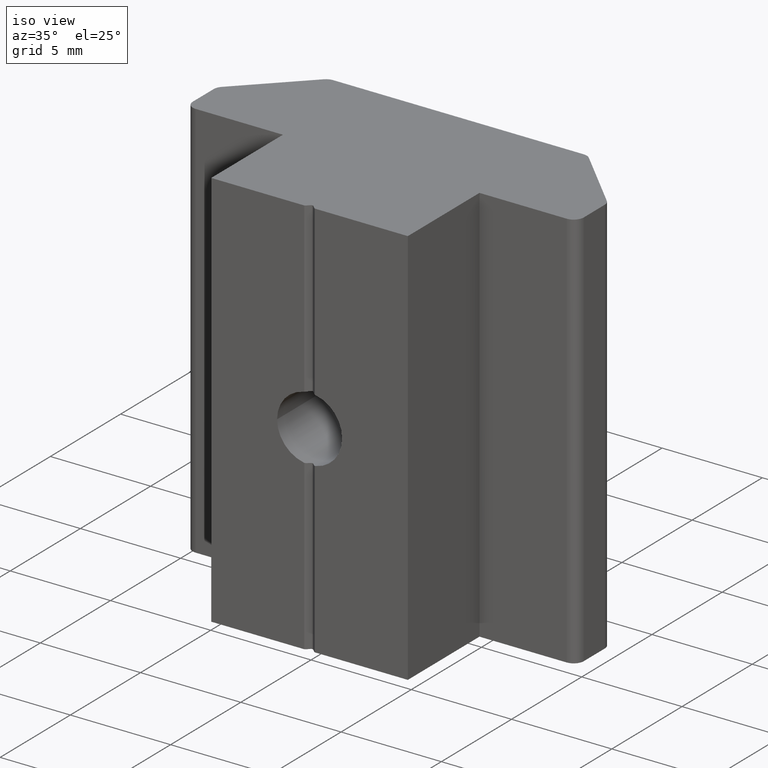
[diagram: clean part render]
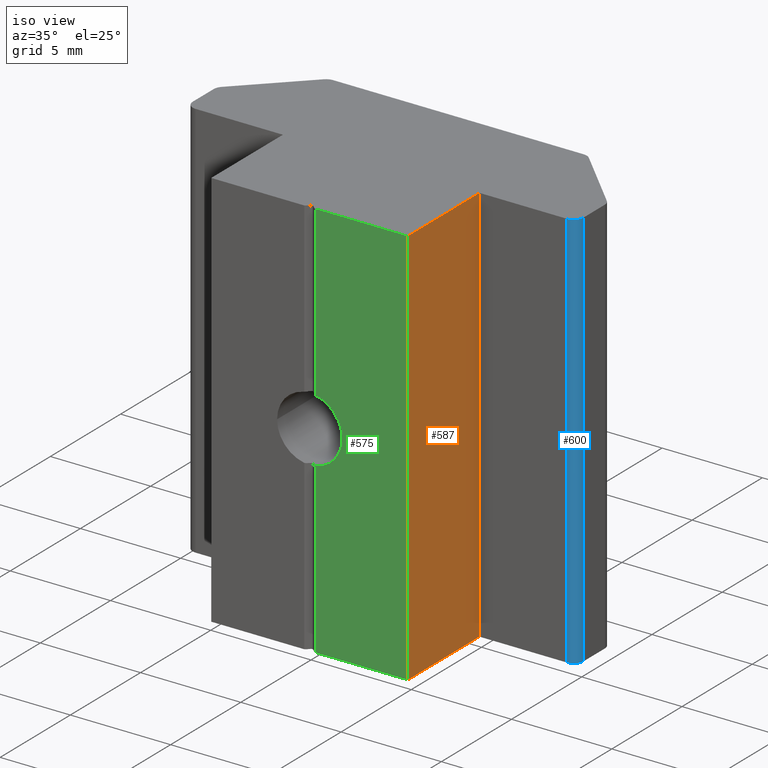
[diagram: same view with three faces highlighted in distinct colors, each labeled with its STEP entity id]
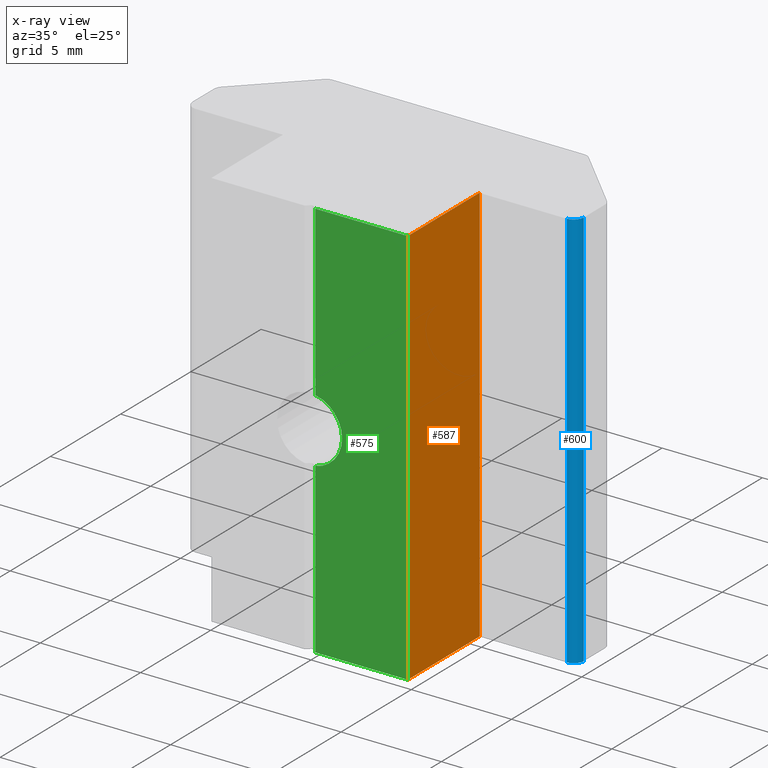
[diagram: x-ray of the same camera — body ghosted, the three highlighted faces saturated]
A machine part, iso view with three faces highlighted in distinct colors.
The next image is the same camera in x-ray (body ghosted, the three faces saturated) — at least one of them is partly hidden behind the body in this view.
Their STEP definitions:

[orange] entity #587 — the highlighted planar face has unit normal (1, 0, 0).
#23=PLANE('',#658);
#47=FACE_OUTER_BOUND('',#77,.T.);
#77=EDGE_LOOP('',(#476,#477,#478,#479));
#109=LINE('',#934,#164);
#135=LINE('',#1007,#190);
#136=LINE('',#1010,#191);
#137=LINE('',#1011,#192);
#164=VECTOR('',#713,10.);
#190=VECTOR('',#783,10.);
#191=VECTOR('',#786,10.);
#192=VECTOR('',#787,10.);
#255=VERTEX_POINT('',#931);
#256=VERTEX_POINT('',#933);
#281=VERTEX_POINT('',#1005);
#282=VERTEX_POINT('',#1009);
#317=EDGE_CURVE('',#255,#256,#109,.T.);
#354=EDGE_CURVE('',#281,#255,#135,.T.);
#355=EDGE_CURVE('',#282,#281,#136,.T.);
#356=EDGE_CURVE('',#256,#282,#137,.T.);
#476=ORIENTED_EDGE('',*,*,#355,.F.);
#477=ORIENTED_EDGE('',*,*,#356,.F.);
#478=ORIENTED_EDGE('',*,*,#317,.F.);
#479=ORIENTED_EDGE('',*,*,#354,.F.);
#587=ADVANCED_FACE('',(#47),#23,.T.);
#658=AXIS2_PLACEMENT_3D('',#1008,#784,#785);
#713=DIRECTION('',(0.,0.,1.));
#783=DIRECTION('',(0.,-1.,0.));
#784=DIRECTION('center_axis',(1.,0.,0.));
#785=DIRECTION('ref_axis',(0.,1.,0.));
#786=DIRECTION('',(0.,0.,-1.));
#787=DIRECTION('',(0.,1.,0.));
#931=CARTESIAN_POINT('',(4.9,-5.1,-10.));
#933=CARTESIAN_POINT('',(4.9,-5.1,10.));
#934=CARTESIAN_POINT('',(4.9,-5.1,0.));
#1005=CARTESIAN_POINT('',(4.9,0.,-10.));
#1007=CARTESIAN_POINT('',(4.9,-5.1,-10.));
#1008=CARTESIAN_POINT('Origin',(4.9,-5.1,0.));
#1009=CARTESIAN_POINT('',(4.9,0.,10.));
#1010=CARTESIAN_POINT('',(4.9,0.,0.));
#1011=CARTESIAN_POINT('',(4.9,-5.1,10.));

[blue] entity #600 — the highlighted cylindrical surface (edge-blend (fillet) strip) has radius 0.5 mm, axis along (0, 0, 1).
#60=FACE_OUTER_BOUND('',#91,.T.);
#91=EDGE_LOOP('',(#530,#531,#532,#533));
#156=LINE('',#1059,#211);
#157=LINE('',#1063,#212);
#211=VECTOR('',#840,10.);
#212=VECTOR('',#845,10.);
#230=CIRCLE('',#657,0.499999999999999);
#236=CIRCLE('',#677,0.499999999999999);
#279=VERTEX_POINT('',#1001);
#280=VERTEX_POINT('',#1003);
#294=VERTEX_POINT('',#1057);
#295=VERTEX_POINT('',#1061);
#352=EDGE_CURVE('',#279,#280,#230,.T.);
#380=EDGE_CURVE('',#279,#294,#156,.T.);
#381=EDGE_CURVE('',#295,#294,#236,.T.);
#382=EDGE_CURVE('',#280,#295,#157,.T.);
#530=ORIENTED_EDGE('',*,*,#380,.T.);
#531=ORIENTED_EDGE('',*,*,#381,.F.);
#532=ORIENTED_EDGE('',*,*,#382,.F.);
#533=ORIENTED_EDGE('',*,*,#352,.F.);
#572=CYLINDRICAL_SURFACE('',#676,0.499999999999999);
#600=ADVANCED_FACE('',(#60),#572,.T.);
#657=AXIS2_PLACEMENT_3D('',#1004,#780,#781);
#676=AXIS2_PLACEMENT_3D('',#1060,#841,#842);
#677=AXIS2_PLACEMENT_3D('',#1062,#843,#844);
#780=DIRECTION('center_axis',(0.,0.,-1.));
#781=DIRECTION('ref_axis',(0.,-1.,0.));
#840=DIRECTION('',(0.,0.,1.));
#841=DIRECTION('center_axis',(0.,0.,1.));
#842=DIRECTION('ref_axis',(0.,-1.,0.));
#843=DIRECTION('center_axis',(0.,0.,1.));
#844=DIRECTION('ref_axis',(0.,-1.,0.));
#845=DIRECTION('',(0.,0.,1.));
#1001=CARTESIAN_POINT('',(9.75,0.5,-10.));
#1003=CARTESIAN_POINT('',(9.25,0.,-10.));
#1004=CARTESIAN_POINT('Origin',(9.25,0.5,-10.));
#1057=CARTESIAN_POINT('',(9.75,0.5,10.));
#1059=CARTESIAN_POINT('',(9.75,0.5,0.));
#1060=CARTESIAN_POINT('Origin',(9.25,0.5,0.));
#1061=CARTESIAN_POINT('',(9.25,0.,10.));
#1062=CARTESIAN_POINT('Origin',(9.25,0.5,10.));
#1063=CARTESIAN_POINT('',(9.25,0.,0.));

[green] entity #575 — the highlighted planar face has unit normal (0, -1, 0).
#16=PLANE('',#635);
#35=FACE_OUTER_BOUND('',#65,.T.);
#65=EDGE_LOOP('',(#405,#406,#407,#408,#409,#410));
#107=LINE('',#930,#162);
#108=LINE('',#932,#163);
#109=LINE('',#934,#164);
#110=LINE('',#936,#165);
#111=LINE('',#937,#166);
#162=VECTOR('',#711,10.);
#163=VECTOR('',#712,10.);
#164=VECTOR('',#713,10.);
#165=VECTOR('',#714,10.);
#166=VECTOR('',#715,10.);
#217=CIRCLE('',#629,1.621);
#245=VERTEX_POINT('',#883);
#246=VERTEX_POINT('',#890);
#254=VERTEX_POINT('',#929);
#255=VERTEX_POINT('',#931);
#256=VERTEX_POINT('',#933);
#257=VERTEX_POINT('',#935);
#305=EDGE_CURVE('',#246,#245,#217,.T.);
#315=EDGE_CURVE('',#245,#254,#107,.T.);
#316=EDGE_CURVE('',#255,#254,#108,.T.);
#317=EDGE_CURVE('',#255,#256,#109,.T.);
#318=EDGE_CURVE('',#257,#256,#110,.T.);
#319=EDGE_CURVE('',#257,#246,#111,.T.);
#405=ORIENTED_EDGE('',*,*,#305,.T.);
#406=ORIENTED_EDGE('',*,*,#315,.T.);
#407=ORIENTED_EDGE('',*,*,#316,.F.);
#408=ORIENTED_EDGE('',*,*,#317,.T.);
#409=ORIENTED_EDGE('',*,*,#318,.F.);
#410=ORIENTED_EDGE('',*,*,#319,.T.);
#575=ADVANCED_FACE('',(#35),#16,.T.);
#629=AXIS2_PLACEMENT_3D('',#891,#695,#696);
#635=AXIS2_PLACEMENT_3D('',#928,#709,#710);
#695=DIRECTION('center_axis',(0.,1.,0.));
#696=DIRECTION('ref_axis',(1.,0.,0.));
#709=DIRECTION('center_axis',(0.,-1.,0.));
#710=DIRECTION('ref_axis',(1.,0.,0.));
#711=DIRECTION('',(0.,0.,-1.));
#712=DIRECTION('',(-1.,0.,0.));
#713=DIRECTION('',(0.,0.,1.));
#714=DIRECTION('',(1.,0.,0.));
#715=DIRECTION('',(0.,0.,-1.));
#883=CARTESIAN_POINT('',(0.282842712474618,-5.1,-1.59613313981009));
#890=CARTESIAN_POINT('',(0.282842712474618,-5.1,1.59613313981009));
#891=CARTESIAN_POINT('Origin',(0.,-5.1,0.));
#928=CARTESIAN_POINT('Origin',(-4.9,-5.1,0.));
#929=CARTESIAN_POINT('',(0.282842712474618,-5.1,-10.));
#930=CARTESIAN_POINT('',(0.282842712474618,-5.1,0.));
#931=CARTESIAN_POINT('',(4.9,-5.1,-10.));
#932=CARTESIAN_POINT('',(-4.9,-5.1,-10.));
#933=CARTESIAN_POINT('',(4.9,-5.1,10.));
#934=CARTESIAN_POINT('',(4.9,-5.1,0.));
#935=CARTESIAN_POINT('',(0.282842712474618,-5.1,10.));
#936=CARTESIAN_POINT('',(-4.9,-5.1,10.));
#937=CARTESIAN_POINT('',(0.282842712474618,-5.1,0.));